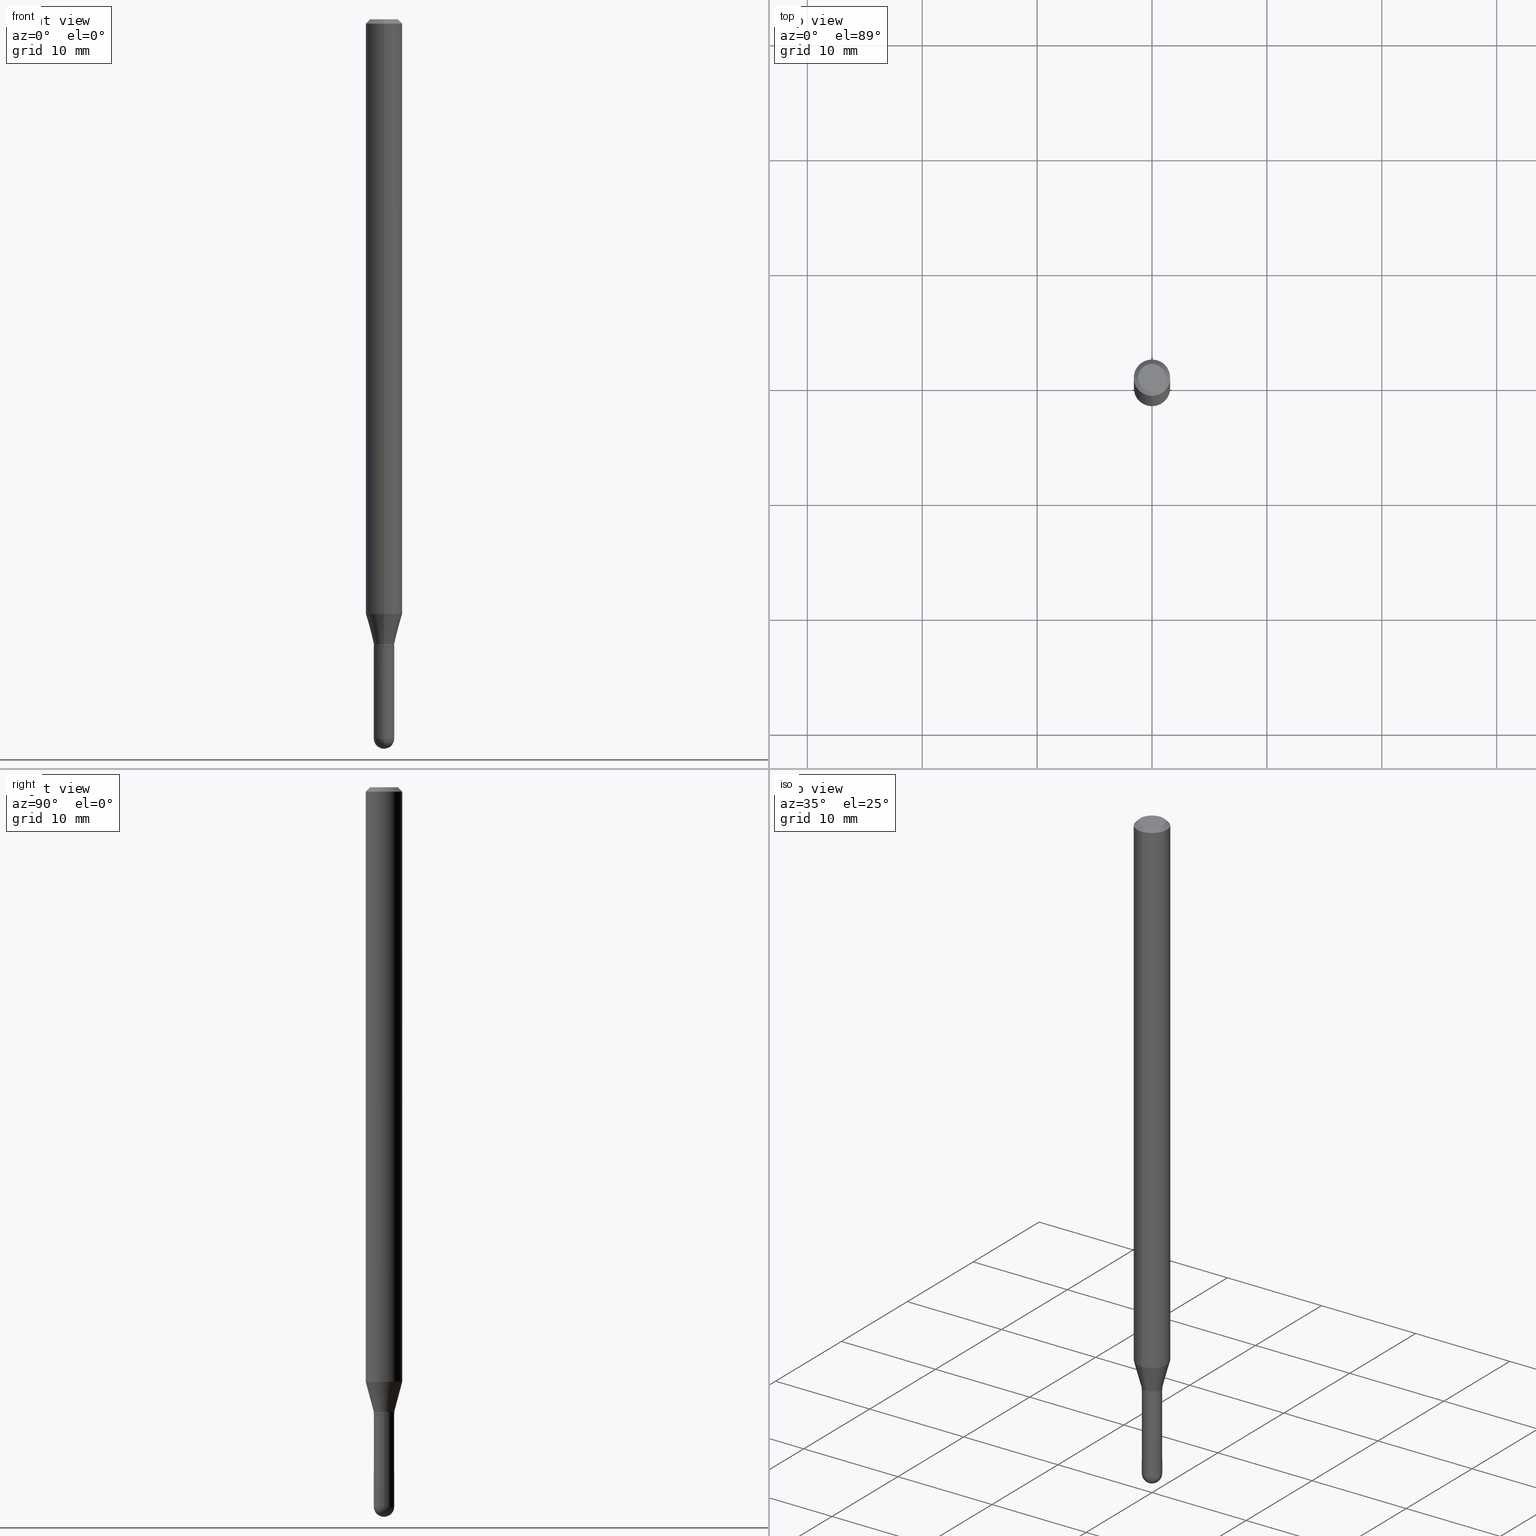
[diagram: canonical four-view strip — front | top / right | iso, engineering-drawing reading convention]
A machine part, canonical four-view strip (front | top / right | iso — engineering-drawing reading convention). The complete STEP part file that produces these views, byte-faithful:
ISO-10303-21;
HEADER;
FILE_DESCRIPTION (( 'STEP AP203' ),
    '1' );
FILE_NAME ('00967.STEP',
    '2024-03-07T19:18:32',
    ( '' ),
    ( '' ),
    'SwSTEP 2.0',
    'SolidWorks 2023',
    '' );
FILE_SCHEMA (( 'CONFIG_CONTROL_DESIGN' ));
ENDSEC;

DATA;
#1 = PERSON_AND_ORGANIZATION ( #127, #278 ) ;
#2 = CARTESIAN_POINT ( 'NONE',  ( 5.233462856667385232E-29, -7.471541492470345186E-15, -2.140000000000000124 ) ) ;
#3 = DIRECTION ( 'NONE',  ( -6.982962677686265922E-15, -1.000000000000000000, 3.483106191921935554E-15 ) ) ;
#4 = DATE_AND_TIME ( #236, #16 ) ;
#5 = CARTESIAN_POINT ( 'NONE',  ( 0.000000000000000000, 0.000000000000000000, 0.000000000000000000 ) ) ;
#6 = CIRCLE ( 'NONE', #483, 0.06250000000000000000 ) ;
#7 = CARTESIAN_POINT ( 'NONE',  ( -4.287811248607203282E-16, -0.06250000000000005551, -0.01499999999999979128 ) ) ;
#8 = FACE_OUTER_BOUND ( 'NONE', #20, .T. ) ;
#9 = CARTESIAN_POINT ( 'NONE',  ( 0.000000000000000000, 0.000000000000000000, 0.000000000000000000 ) ) ;
#10 = EDGE_CURVE ( 'NONE', #368, #273, #490, .T. ) ;
#11 = DIRECTION ( 'NONE',  ( 6.982962677686265922E-15, 1.000000000000000000, -3.491374529191749825E-15 ) ) ;
#12 = VERTEX_POINT ( 'NONE', #185 ) ;
#13 = CARTESIAN_POINT ( 'NONE',  ( 5.257918290577045984E-29, -7.506455237762263682E-15, -2.150000000000000355 ) ) ;
#14 = DIRECTION ( 'NONE',  ( -2.445468806185136597E-29, 3.491481338843145583E-15, 1.000000000000000000 ) ) ;
#15 = CONICAL_SURFACE ( 'NONE', #414, 0.03450000000000000289, 0.7853981633974739252 ) ;
#16 = LOCAL_TIME ( 14, 18, 32.00000000000000000, #86 ) ;
#17 = ADVANCED_FACE ( 'NONE', ( #455 ), #263, .F. ) ;
#18 = SPHERICAL_SURFACE ( 'NONE', #229, 0.03500000000000001721 ) ;
#19 = CARTESIAN_POINT ( 'NONE',  ( 2.469136006766870987E-16, 0.03449999999999249500, -2.150000000000000355 ) ) ;
#20 = EDGE_LOOP ( 'NONE', ( #197, #83, #415, #373 ) ) ;
#21 = ORIENTED_EDGE ( 'NONE', *, *, #167, .T. ) ;
#22 = PERSON_AND_ORGANIZATION ( #127, #278 ) ;
#23 = DIRECTION ( 'NONE',  ( -6.982962677686265133E-15, -1.000000000000000000, 0.000000000000000000 ) ) ;
#24 = CARTESIAN_POINT ( 'NONE',  ( 4.364351673553919652E-16, 0.06249999999999995143, -0.01500000000000022669 ) ) ;
#25 = ORIENTED_EDGE ( 'NONE', *, *, #386, .F. ) ;
#26 = ORIENTED_EDGE ( 'NONE', *, *, #32, .T. ) ;
#27 = APPROVAL_STATUS ( 'not_yet_approved' ) ;
#28 = APPROVAL ( #461, 'UNSPECIFIED' ) ;
#29 = CIRCLE ( 'NONE', #447, 0.03500000000000000333 ) ;
#30 = ORIENTED_EDGE ( 'NONE', *, *, #303, .T. ) ;
#31 = COORDINATED_UNIVERSAL_TIME_OFFSET ( 5, 0, .BEHIND. ) ;
#32 = EDGE_CURVE ( 'NONE', #336, #80, #205, .T. ) ;
#33 = ORIENTED_EDGE ( 'NONE', *, *, #10, .T. ) ;
#34 = ORIENTED_EDGE ( 'NONE', *, *, #357, .F. ) ;
#35 = DIRECTION ( 'NONE',  ( -2.445543390966067913E-29, 3.491374529191749825E-15, 1.000000000000000000 ) ) ;
#36 = ORIENTED_EDGE ( 'NONE', *, *, #101, .T. ) ;
#37 = AXIS2_PLACEMENT_3D ( 'NONE', #435, #314, #42 ) ;
#38 = LOCAL_TIME ( 14, 18, 32.00000000000000000, #394 ) ;
#39 = EDGE_CURVE ( 'NONE', #274, #145, #257, .T. ) ;
#40 = CARTESIAN_POINT ( 'NONE',  ( 5.256695518881564852E-29, -7.504709550497667599E-15, -2.149500000000000188 ) ) ;
#41 = LINE ( 'NONE', #233, #371 ) ;
#42 = DIRECTION ( 'NONE',  ( -6.982962677686265133E-15, -1.000000000000000000, 0.000000000000000000 ) ) ;
#43 = DIRECTION ( 'NONE',  ( -2.445543390966067913E-29, 3.491374529191749825E-15, 1.000000000000000000 ) ) ;
#44 = VECTOR ( 'NONE', #328, 39.37007874015748143 ) ;
#45 = CONICAL_SURFACE ( 'NONE', #220, 0.03450000000000000289, 0.7853981633974739252 ) ;
#46 = DIRECTION ( 'NONE',  ( -2.445543390966067632E-29, 3.491374529191749825E-15, 1.000000000000000000 ) ) ;
#47 = CARTESIAN_POINT ( 'NONE',  ( 3.668315086449104479E-31, -5.237061793787627745E-17, -0.01500000000000000812 ) ) ;
#48 = DIRECTION ( 'NONE',  ( -2.445468806185136597E-29, 3.491481338843145583E-15, 1.000000000000000000 ) ) ;
#49 = EDGE_LOOP ( 'NONE', ( #458, #498, #182, #462, #21 ) ) ;
#50 = CARTESIAN_POINT ( 'NONE',  ( 2.444036937190796236E-16, 0.03499999999999140604, -2.464999999999999858 ) ) ;
#51 = APPLICATION_CONTEXT ( 'configuration controlled 3d designs of mechanical parts and assemblies' ) ;
#52 = CIRCLE ( 'NONE', #337, 0.03500000000000000333 ) ;
#53 = ADVANCED_FACE ( 'NONE', ( #61 ), #118, .T. ) ;
#54 = AXIS2_PLACEMENT_3D ( 'NONE', #255, #409, #59 ) ;
#55 = DIRECTION ( 'NONE',  ( -4.851104656540964275E-15, -0.7071067811865500152, -0.7071067811865450192 ) ) ;
#56 = CC_DESIGN_APPROVAL ( #503, ( #494 ) ) ;
#57 = ORIENTED_EDGE ( 'NONE', *, *, #122, .F. ) ;
#58 = DIRECTION ( 'NONE',  ( 6.982962677686265922E-15, 1.000000000000000000, 0.000000000000000000 ) ) ;
#59 = DIRECTION ( 'NONE',  ( -6.982962677686265922E-15, -1.000000000000000000, 3.491374529191749825E-15 ) ) ;
#60 = DIRECTION ( 'NONE',  ( -2.445543390966067913E-29, 3.491374529191749825E-15, 1.000000000000000000 ) ) ;
#61 = FACE_OUTER_BOUND ( 'NONE', #77, .T. ) ;
#62 = ORIENTED_EDGE ( 'NONE', *, *, #308, .T. ) ;
#63 =( LENGTH_UNIT ( ) NAMED_UNIT ( * ) SI_UNIT ( $, .METRE. ) );
#64 = CARTESIAN_POINT ( 'NONE',  ( 2.486899575160862168E-16, 0.03499999999999229422, -2.149500000000000188 ) ) ;
#65 = AXIS2_PLACEMENT_3D ( 'NONE', #93, #88, #441 ) ;
#66 = VERTEX_POINT ( 'NONE', #143 ) ;
#67 = ORIENTED_EDGE ( 'NONE', *, *, #454, .T. ) ;
#68 = DIRECTION ( 'NONE',  ( 1.000000000000000000, 0.000000000000000000, 0.000000000000000000 ) ) ;
#69 = EDGE_LOOP ( 'NONE', ( #380, #67, #456, #496 ) ) ;
#70 = COORDINATED_UNIVERSAL_TIME_OFFSET ( 5, 0, .BEHIND. ) ;
#71 = CARTESIAN_POINT ( 'NONE',  ( 5.233462856667385232E-29, -7.471541492470345186E-15, -2.140000000000000124 ) ) ;
#72 = MECHANICAL_CONTEXT ( 'NONE', #352, 'mechanical' ) ;
#73 = EDGE_CURVE ( 'NONE', #504, #80, #389, .T. ) ;
#74 = CIRCLE ( 'NONE', #492, 0.03500000000000000333 ) ;
#75 = DIRECTION ( 'NONE',  ( -6.982962677686265133E-15, -1.000000000000000000, 0.000000000000000000 ) ) ;
#76 = ORIENTED_EDGE ( 'NONE', *, *, #308, .F. ) ;
#77 = EDGE_LOOP ( 'NONE', ( #34, #271, #225, #451 ) ) ;
#78 = CC_DESIGN_DATE_AND_TIME_ASSIGNMENT ( #226, #378, ( #180 ) ) ;
#79 = CARTESIAN_POINT ( 'NONE',  ( 4.440892098500625669E-16, 0.06250000000000000000, -2.182109080744843641E-16 ) ) ;
#80 = VERTEX_POINT ( 'NONE', #234 ) ;
#81 = SECURITY_CLASSIFICATION_LEVEL ( 'unclassified' ) ;
#82 = LINE ( 'NONE', #79, #97 ) ;
#83 = ORIENTED_EDGE ( 'NONE', *, *, #195, .T. ) ;
#84 = AXIS2_PLACEMENT_3D ( 'NONE', #262, #136, #217 ) ;
#85 = LOCAL_TIME ( 14, 18, 32.00000000000000000, #70 ) ;
#86 = COORDINATED_UNIVERSAL_TIME_OFFSET ( 5, 0, .BEHIND. ) ;
#87 = LINE ( 'NONE', #237, #429 ) ;
#88 = DIRECTION ( 'NONE',  ( -1.000000000000000000, 7.105427357601001070E-15, -4.926315508542082329E-29 ) ) ;
#89 = DIRECTION ( 'NONE',  ( -6.982962677686265922E-15, -1.000000000000000000, 4.370956789862821150E-15 ) ) ;
#90 = DIRECTION ( 'NONE',  ( -2.445543390966067913E-29, 3.491374529191749825E-15, 1.000000000000000000 ) ) ;
#91 = DIRECTION ( 'NONE',  ( -2.445543390966067913E-29, 3.491374529191749825E-15, 1.000000000000000000 ) ) ;
#92 = ADVANCED_FACE ( 'NONE', ( #387 ), #170, .T. ) ;
#93 = CARTESIAN_POINT ( 'NONE',  ( 6.025087525234234064E-29, -8.610787764045369491E-15, -2.464999999999999858 ) ) ;
#94 = ORIENTED_EDGE ( 'NONE', *, *, #184, .F. ) ;
#95 = CIRCLE ( 'NONE', #243, 0.04749999999999999362 ) ;
#96 = PERSON_AND_ORGANIZATION_ROLE ( 'classification_officer' ) ;
#97 = VECTOR ( 'NONE', #150, 39.37007874015748143 ) ;
#98 = CARTESIAN_POINT ( 'NONE',  ( 3.840629472727447874E-16, 0.04749999999999999362, -1.747056831868805383E-16 ) ) ;
#99 = CARTESIAN_POINT ( 'NONE',  ( -3.773273898774340269E-16, -0.04749999999999999362, 1.569748970863356842E-16 ) ) ;
#100 = DIRECTION ( 'NONE',  ( -6.982962677686265922E-15, -1.000000000000000000, 3.483106191921935554E-15 ) ) ;
#101 = EDGE_CURVE ( 'NONE', #264, #273, #82, .T. ) ;
#102 = CARTESIAN_POINT ( 'NONE',  ( 3.668315086449104479E-31, -5.237061793787627745E-17, -0.01500000000000000812 ) ) ;
#103 = DIRECTION ( 'NONE',  ( -2.445543390966067913E-29, 3.491374529191749825E-15, 1.000000000000000000 ) ) ;
#104 = CIRCLE ( 'NONE', #381, 0.06250000000000000000 ) ;
#105 = DIRECTION ( 'NONE',  ( -6.982962677686265133E-15, -1.000000000000000000, 3.491374529191749825E-15 ) ) ;
#106 = ORIENTED_EDGE ( 'NONE', *, *, #195, .F. ) ;
#107 = CARTESIAN_POINT ( 'NONE',  ( 6.025087525234234064E-29, -8.610787764045369491E-15, -2.464999999999999858 ) ) ;
#108 = CARTESIAN_POINT ( 'NONE',  ( 6.025087525234234064E-29, -8.610787764045369491E-15, -2.464999999999999858 ) ) ;
#109 = AXIS2_PLACEMENT_3D ( 'NONE', #141, #485, #295 ) ;
#110 = DIRECTION ( 'NONE',  ( 1.000000000000000000, -6.982962677686276966E-15, 0.000000000000000000 ) ) ;
#111 = FACE_OUTER_BOUND ( 'NONE', #258, .T. ) ;
#112 = CC_DESIGN_SECURITY_CLASSIFICATION ( #439, ( #494 ) ) ;
#113 = ORIENTED_EDGE ( 'NONE', *, *, #284, .T. ) ;
#114 = EDGE_CURVE ( 'NONE', #346, #493, #41, .T. ) ;
#115 = DIMENSIONAL_EXPONENTS ( 1.000000000000000000, 0.000000000000000000, 0.000000000000000000, 0.000000000000000000, 0.000000000000000000, 0.000000000000000000, 0.000000000000000000 ) ;
#116 = ORIENTED_EDGE ( 'NONE', *, *, #114, .F. ) ;
#117 = DATE_AND_TIME ( #152, #484 ) ;
#118 = CONICAL_SURFACE ( 'NONE', #109, 0.03499999999999992006, 0.2617993877991506846 ) ;
#119 = AXIS2_PLACEMENT_3D ( 'NONE', #203, #285, #238 ) ;
#120 = VERTEX_POINT ( 'NONE', #227 ) ;
#121 = APPROVAL_DATE_TIME ( #117, #503 ) ;
#122 = EDGE_CURVE ( 'NONE', #384, #274, #222, .T. ) ;
#123 = ORIENTED_EDGE ( 'NONE', *, *, #39, .T. ) ;
#124 = DIRECTION ( 'NONE',  ( 2.438088387897960049E-29, -3.491481338843145188E-15, -1.000000000000000000 ) ) ;
#125 = APPROVAL_PERSON_ORGANIZATION ( #22, #28, #183 ) ;
#126 = DIRECTION ( 'NONE',  ( -6.982962677686265133E-15, -1.000000000000000000, 0.000000000000000000 ) ) ;
#127 = PERSON ( 'UNSPECIFIED', 'UNSPECIFIED', 'UNSPECIFIED', ('UNSPECIFIED'), ('UNSPECIFIED'), ('UNSPECIFIED') ) ;
#128 = EDGE_CURVE ( 'NONE', #252, #66, #397, .T. ) ;
#129 = ORIENTED_EDGE ( 'NONE', *, *, #202, .T. ) ;
#130 = CARTESIAN_POINT ( 'NONE',  ( -2.409122123801235628E-16, -0.03450000000000751077, -2.150000000000000355 ) ) ;
#131 = FACE_OUTER_BOUND ( 'NONE', #69, .T. ) ;
#132 = CONICAL_SURFACE ( 'NONE', #437, 0.06250000000000000000, 0.7853981633974483900 ) ;
#133 = EDGE_CURVE ( 'NONE', #252, #218, #349, .T. ) ;
#134 = CARTESIAN_POINT ( 'NONE',  ( 0.000000000000000000, 0.000000000000000000, 0.000000000000000000 ) ) ;
#135 = DIRECTION ( 'NONE',  ( -1.000000000000000000, 6.982962677686265922E-15, -4.883557194083112340E-29 ) ) ;
#136 = DIRECTION ( 'NONE',  ( -2.445468806185136597E-29, 3.491481338843145583E-15, 1.000000000000000000 ) ) ;
#137 = FACE_OUTER_BOUND ( 'NONE', #422, .T. ) ;
#138 = DIRECTION ( 'NONE',  ( 2.445543390966067632E-29, -3.491374529191749825E-15, -1.000000000000000000 ) ) ;
#139 = CC_DESIGN_PERSON_AND_ORGANIZATION_ASSIGNMENT ( #163, #96, ( #439 ) ) ;
#140 = CARTESIAN_POINT ( 'NONE',  ( -0.03500000000000000333, 2.486899575160350887E-16, -1.721627281589217108E-30 ) ) ;
#141 = CARTESIAN_POINT ( 'NONE',  ( 5.233462856667385232E-29, -7.471541492470345186E-15, -2.140000000000000124 ) ) ;
#142 = ADVANCED_FACE ( 'NONE', ( #131 ), #132, .T. ) ;
#143 = CARTESIAN_POINT ( 'NONE',  ( -2.486899575159748395E-16, -0.03500000000000861450, -2.464999999999999858 ) ) ;
#144 = DIRECTION ( 'NONE',  ( 6.982962677686265922E-15, 1.000000000000000000, 0.000000000000000000 ) ) ;
#145 = VERTEX_POINT ( 'NONE', #404 ) ;
#146 = CALENDAR_DATE ( 2024, 7, 3 ) ;
#147 = CIRCLE ( 'NONE', #212, 0.03499999999999992006 ) ;
#148 = CONICAL_SURFACE ( 'NONE', #382, 0.06250000000000000000, 0.7853981633974483900 ) ;
#149 = ADVANCED_FACE ( 'NONE', ( #348 ), #356, .T. ) ;
#150 = DIRECTION ( 'NONE',  ( -2.445543390966067632E-29, 3.491374529191749825E-15, 1.000000000000000000 ) ) ;
#151 = ORIENTED_EDGE ( 'NONE', *, *, #114, .T. ) ;
#152 = CALENDAR_DATE ( 2024, 7, 3 ) ;
#153 = ORIENTED_EDGE ( 'NONE', *, *, #370, .T. ) ;
#154 = VERTEX_POINT ( 'NONE', #166 ) ;
#155 = DIRECTION ( 'NONE',  ( 0.000000000000000000, 0.000000000000000000, 1.000000000000000000 ) ) ;
#156 = ORIENTED_EDGE ( 'NONE', *, *, #340, .F. ) ;
#157 = ORIENTED_EDGE ( 'NONE', *, *, #440, .F. ) ;
#158 = APPROVAL_STATUS ( 'not_yet_approved' ) ;
#159 = CARTESIAN_POINT ( 'NONE',  ( 3.668315086449104479E-31, -5.237061793787627745E-17, -0.01500000000000000812 ) ) ;
#160 = ORIENTED_EDGE ( 'NONE', *, *, #395, .T. ) ;
#161 = AXIS2_PLACEMENT_3D ( 'NONE', #294, #60, #181 ) ;
#162 = EDGE_CURVE ( 'NONE', #346, #264, #398, .T. ) ;
#163 = PERSON_AND_ORGANIZATION ( #127, #278 ) ;
#164 = DIRECTION ( 'NONE',  ( 1.000000000000000000, -6.982962677686248567E-15, 0.000000000000000000 ) ) ;
#165 = CARTESIAN_POINT ( 'NONE',  ( 5.257918290577045984E-29, -7.506455237762263682E-15, -2.150000000000000355 ) ) ;
#166 = CARTESIAN_POINT ( 'NONE',  ( -2.444036937189664220E-16, -0.03500000000000739325, -2.140000000000000124 ) ) ;
#167 = EDGE_CURVE ( 'NONE', #504, #218, #74, .T. ) ;
#168 = FACE_OUTER_BOUND ( 'NONE', #299, .T. ) ;
#169 = CARTESIAN_POINT ( 'NONE',  ( 4.982473321519396177E-29, -7.113216846362469892E-15, -2.037368602791856276 ) ) ;
#170 = CONICAL_SURFACE ( 'NONE', #453, 0.03499999999999992006, 0.2617993877991506846 ) ;
#171 = AXIS2_PLACEMENT_3D ( 'NONE', #159, #43, #3 ) ;
#172 = AXIS2_PLACEMENT_3D ( 'NONE', #249, #481, #450 ) ;
#173 = DIRECTION ( 'NONE',  ( -1.000000000000000000, 6.982962677686265922E-15, -4.883557194083112340E-29 ) ) ;
#174 = DIRECTION ( 'NONE',  ( 5.024295867788190974E-15, 0.7071067811865681119, 0.7071067811865270336 ) ) ;
#175 = CYLINDRICAL_SURFACE ( 'NONE', #430, 0.06250000000000000000 ) ;
#176 = CARTESIAN_POINT ( 'NONE',  ( 2.486899575160344971E-16, 0.03499999999999992700, -1.221981085217109895E-16 ) ) ;
#177 = EDGE_CURVE ( 'NONE', #493, #273, #187, .T. ) ;
#178 = AXIS2_PLACEMENT_3D ( 'NONE', #310, #354, #392 ) ;
#179 = VECTOR ( 'NONE', #55, 39.37007874015748143 ) ;
#180 = PRODUCT_DEFINITION ( 'UNKNOWN', '', #494, #399 ) ;
#181 = DIRECTION ( 'NONE',  ( -6.982962677686266711E-15, -1.000000000000000000, 3.491374529191750614E-15 ) ) ;
#182 = ORIENTED_EDGE ( 'NONE', *, *, #405, .F. ) ;
#183 = APPROVAL_ROLE ( '' ) ;
#184 = EDGE_CURVE ( 'NONE', #273, #493, #6, .T. ) ;
#185 = CARTESIAN_POINT ( 'NONE',  ( -2.409122123801235628E-16, -0.03450000000000751077, -2.150000000000000355 ) ) ;
#186 = ORIENTED_EDGE ( 'NONE', *, *, #133, .T. ) ;
#187 = CIRCLE ( 'NONE', #171, 0.06250000000000000000 ) ;
#188 = APPROVAL_ROLE ( '' ) ;
#189 = VECTOR ( 'NONE', #412, 39.37007874015748143 ) ;
#190 = EDGE_LOOP ( 'NONE', ( #509, #36, #377, #116 ) ) ;
#191 = DATE_AND_TIME ( #421, #244 ) ;
#192 = ORIENTED_EDGE ( 'NONE', *, *, #395, .F. ) ;
#193 = ORIENTED_EDGE ( 'NONE', *, *, #454, .F. ) ;
#194 = EDGE_LOOP ( 'NONE', ( #193, #192, #33, #208 ) ) ;
#195 = EDGE_CURVE ( 'NONE', #275, #12, #261, .T. ) ;
#196 = VECTOR ( 'NONE', #335, 39.37007874015748143 ) ;
#197 = ORIENTED_EDGE ( 'NONE', *, *, #216, .F. ) ;
#198 = CYLINDRICAL_SURFACE ( 'NONE', #178, 0.03500000000000000333 ) ;
#199 = CARTESIAN_POINT ( 'NONE',  ( 0.03500000000000000333, -2.444036937190193250E-16, 1.706661871528577808E-30 ) ) ;
#200 = ORIENTED_EDGE ( 'NONE', *, *, #167, .F. ) ;
#201 = CARTESIAN_POINT ( 'NONE',  ( -0.03500000000000000333, -7.807903231864523961E-15, -2.150000000000000355 ) ) ;
#202 = EDGE_CURVE ( 'NONE', #228, #368, #95, .T. ) ;
#203 = CARTESIAN_POINT ( 'NONE',  ( 6.025087525234234064E-29, -8.610787764045369491E-15, -2.464999999999999858 ) ) ;
#204 = LINE ( 'NONE', #511, #312 ) ;
#205 = CIRCLE ( 'NONE', #260, 0.03500000000000000333 ) ;
#206 = APPROVAL_ROLE ( '' ) ;
#207 = DIRECTION ( 'NONE',  ( -2.445468806185136597E-29, 3.491481338843145583E-15, 1.000000000000000000 ) ) ;
#208 = ORIENTED_EDGE ( 'NONE', *, *, #184, .T. ) ;
#209 = ADVANCED_FACE ( 'NONE', ( #8 ), #45, .T. ) ;
#210 = DIRECTION ( 'NONE',  ( 1.000000000000000000, -6.982962677686248567E-15, 0.000000000000000000 ) ) ;
#211 = CARTESIAN_POINT ( 'NONE',  ( 6.028080607246362204E-29, -8.606501500248354960E-15, -2.464999999999999858 ) ) ;
#212 = AXIS2_PLACEMENT_3D ( 'NONE', #2, #91, #315 ) ;
#213 = AXIS2_PLACEMENT_3D ( 'NONE', #502, #155, #68 ) ;
#214 = FACE_OUTER_BOUND ( 'NONE', #467, .T. ) ;
#215 = CARTESIAN_POINT ( 'NONE',  ( 3.316907271900976096E-16, 0.04749999999999999362, -1.702729866617443063E-16 ) ) ;
#216 = EDGE_CURVE ( 'NONE', #275, #274, #204, .T. ) ;
#217 = DIRECTION ( 'NONE',  ( 1.000000000000000000, -6.982962677686248567E-15, 0.000000000000000000 ) ) ;
#218 = VERTEX_POINT ( 'NONE', #50 ) ;
#219 = ORIENTED_EDGE ( 'NONE', *, *, #505, .F. ) ;
#220 = AXIS2_PLACEMENT_3D ( 'NONE', #165, #320, #126 ) ;
#221 = CYLINDRICAL_SURFACE ( 'NONE', #270, 0.03500000000000000333 ) ;
#222 = CIRCLE ( 'NONE', #288, 0.03499999999999992700 ) ;
#223 = ORIENTED_EDGE ( 'NONE', *, *, #128, .T. ) ;
#224 = ADVANCED_FACE ( 'NONE', ( #468 ), #396, .F. ) ;
#225 = ORIENTED_EDGE ( 'NONE', *, *, #232, .T. ) ;
#226 = DATE_AND_TIME ( #146, #85 ) ;
#227 = CARTESIAN_POINT ( 'NONE',  ( -0.03500000000000000333, -7.807903231864523961E-15, -2.464999999999999858 ) ) ;
#228 = VERTEX_POINT ( 'NONE', #99 ) ;
#229 = AXIS2_PLACEMENT_3D ( 'NONE', #108, #135, #144 ) ;
#230 = CC_DESIGN_PERSON_AND_ORGANIZATION_ASSIGNMENT ( #497, #491, ( #180 ) ) ;
#231 = ORIENTED_EDGE ( 'NONE', *, *, #216, .T. ) ;
#232 = EDGE_CURVE ( 'NONE', #154, #346, #318, .T. ) ;
#233 = CARTESIAN_POINT ( 'NONE',  ( -4.364351673553916201E-16, -0.06250000000000000000, 2.182109080744843641E-16 ) ) ;
#234 = CARTESIAN_POINT ( 'NONE',  ( 0.03500000000000000333, -7.751088572231783501E-15, -2.150000000000000355 ) ) ;
#235 = CIRCLE ( 'NONE', #360, 0.03499999999999992700 ) ;
#236 = CALENDAR_DATE ( 2024, 7, 3 ) ;
#237 = CARTESIAN_POINT ( 'NONE',  ( -2.444036937190187827E-16, -0.03499999999999992700, 1.221981085217109895E-16 ) ) ;
#238 = DIRECTION ( 'NONE',  ( 6.982962677686265922E-15, 1.000000000000000000, 0.000000000000000000 ) ) ;
#239 = DATE_TIME_ROLE ( 'classification_date' ) ;
#240 = DIRECTION ( 'NONE',  ( -6.982962677686265133E-15, -1.000000000000000000, 3.491374529191749825E-15 ) ) ;
#241 = DIRECTION ( 'NONE',  ( -2.445543390966067913E-29, 3.491374529191749825E-15, 1.000000000000000000 ) ) ;
#242 = DIRECTION ( 'NONE',  ( 2.445543390966067913E-29, -3.491374529191749825E-15, -1.000000000000000000 ) ) ;
#243 = AXIS2_PLACEMENT_3D ( 'NONE', #407, #471, #279 ) ;
#244 = LOCAL_TIME ( 14, 18, 32.00000000000000000, #31 ) ;
#245 = DIRECTION ( 'NONE',  ( -2.445543390966067913E-29, 3.491374529191749825E-15, 1.000000000000000000 ) ) ;
#246 = ADVANCED_FACE ( 'NONE', ( #434 ), #478, .T. ) ;
#247 = DIRECTION ( 'NONE',  ( 1.000000000000000000, -6.982962677686248567E-15, 0.000000000000000000 ) ) ;
#248 = ORIENTED_EDGE ( 'NONE', *, *, #162, .F. ) ;
#249 = CARTESIAN_POINT ( 'NONE',  ( 5.233462856667385232E-29, -7.471541492470345186E-15, -2.140000000000000124 ) ) ;
#250 = PLANE ( 'NONE',  #54 ) ;
#251 = CIRCLE ( 'NONE', #161, 0.04749999999999999362 ) ;
#252 = VERTEX_POINT ( 'NONE', #473 ) ;
#253 = ORIENTED_EDGE ( 'NONE', *, *, #440, .T. ) ;
#254 = SPHERICAL_SURFACE ( 'NONE', #463, 0.03500000000000001721 ) ;
#255 = CARTESIAN_POINT ( 'NONE',  ( 5.257918290577045984E-29, -7.506455237762263682E-15, -2.150000000000000355 ) ) ;
#256 = DIRECTION ( 'NONE',  ( -6.982962677686265922E-15, -1.000000000000000000, 3.491374529191749825E-15 ) ) ;
#257 = LINE ( 'NONE', #176, #44 ) ;
#258 = EDGE_LOOP ( 'NONE', ( #459, #123, #157, #76 ) ) ;
#259 = DIRECTION ( 'NONE',  ( -2.445543390966067913E-29, 3.491374529191749825E-15, 1.000000000000000000 ) ) ;
#260 = AXIS2_PLACEMENT_3D ( 'NONE', #448, #410, #365 ) ;
#261 = CIRCLE ( 'NONE', #37, 0.03450000000000000289 ) ;
#262 = CARTESIAN_POINT ( 'NONE',  ( 6.028080607246362204E-29, -8.606501500248354960E-15, -2.464999999999999858 ) ) ;
#263 = PLANE ( 'NONE',  #475 ) ;
#264 = VERTEX_POINT ( 'NONE', #401 ) ;
#265 = ADVANCED_BREP_SHAPE_REPRESENTATION ( '00967', ( #329, #506, #213 ), #477 ) ;
#266 = CARTESIAN_POINT ( 'NONE',  ( 5.256695518881564852E-29, -7.504709550497667599E-15, -2.149500000000000188 ) ) ;
#267 = CIRCLE ( 'NONE', #327, 0.03500000000000000333 ) ;
#268 = PERSON_AND_ORGANIZATION ( #127, #278 ) ;
#269 = ADVANCED_FACE ( 'NONE', ( #445 ), #15, .T. ) ;
#270 = AXIS2_PLACEMENT_3D ( 'NONE', #297, #372, #406 ) ;
#271 = ORIENTED_EDGE ( 'NONE', *, *, #323, .T. ) ;
#272 = PERSON_AND_ORGANIZATION ( #127, #278 ) ;
#273 = VERTEX_POINT ( 'NONE', #413 ) ;
#274 = VERTEX_POINT ( 'NONE', #64 ) ;
#275 = VERTEX_POINT ( 'NONE', #19 ) ;
#276 = ADVANCED_FACE ( 'NONE', ( #111 ), #298, .T. ) ;
#277 = VECTOR ( 'NONE', #280, 39.37007874015748143 ) ;
#278 = ORGANIZATION ( 'UNSPECIFIED', 'UNSPECIFIED', '' ) ;
#279 = DIRECTION ( 'NONE',  ( -6.982962677686266711E-15, -1.000000000000000000, 3.491374529191750614E-15 ) ) ;
#280 = DIRECTION ( 'NONE',  ( 1.839019923739603076E-15, 0.2588190451025253469, 0.9659258262890670910 ) ) ;
#281 = CARTESIAN_POINT ( 'NONE',  ( 2.444036937190718829E-16, 0.03499999999999249545, -2.150000000000000355 ) ) ;
#282 = DIRECTION ( 'NONE',  ( -2.445543390966067913E-29, 3.491374529191749825E-15, 1.000000000000000000 ) ) ;
#283 = LINE ( 'NONE', #438, #277 ) ;
#284 = EDGE_CURVE ( 'NONE', #120, #66, #305, .T. ) ;
#285 = DIRECTION ( 'NONE',  ( 1.000000000000000000, -6.982962677686265922E-15, 4.883557194083112340E-29 ) ) ;
#286 = AXIS2_PLACEMENT_3D ( 'NONE', #281, #124, #316 ) ;
#287 = CC_DESIGN_APPROVAL ( #28, ( #180 ) ) ;
#288 = AXIS2_PLACEMENT_3D ( 'NONE', #266, #419, #75 ) ;
#289 = DIRECTION ( 'NONE',  ( -6.982962677686265922E-15, -1.000000000000000000, 3.491374529191749825E-15 ) ) ;
#290 = CARTESIAN_POINT ( 'NONE',  ( 5.257757933298044131E-29, -7.506684878512763535E-15, -2.150000000000000355 ) ) ;
#291 = ADVANCED_FACE ( 'NONE', ( #137 ), #250, .F. ) ;
#292 = LENGTH_MEASURE_WITH_UNIT ( LENGTH_MEASURE( 0.02539999999999999897 ), #63 );
#293 = AXIS2_PLACEMENT_3D ( 'NONE', #13, #331, #333 ) ;
#294 = CARTESIAN_POINT ( 'NONE',  ( 2.168070338241019789E-46, -3.095240748699463690E-32, -8.865393050272408531E-18 ) ) ;
#295 = DIRECTION ( 'NONE',  ( -6.982962677686266711E-15, -1.000000000000000000, 0.000000000000000000 ) ) ;
#296 = FACE_OUTER_BOUND ( 'NONE', #194, .T. ) ;
#297 = CARTESIAN_POINT ( 'NONE',  ( 0.000000000000000000, 0.000000000000000000, 0.000000000000000000 ) ) ;
#298 = CYLINDRICAL_SURFACE ( 'NONE', #300, 0.03499999999999992700 ) ;
#299 = EDGE_LOOP ( 'NONE', ( #219, #113, #443, #469, #334 ) ) ;
#300 = AXIS2_PLACEMENT_3D ( 'NONE', #363, #103, #105 ) ;
#301 = EDGE_LOOP ( 'NONE', ( #324, #30, #62, #385 ) ) ;
#302 = APPROVAL ( #158, 'UNSPECIFIED' ) ;
#303 = EDGE_CURVE ( 'NONE', #274, #384, #235, .T. ) ;
#304 = ORIENTED_EDGE ( 'NONE', *, *, #424, .T. ) ;
#305 = CIRCLE ( 'NONE', #84, 0.03500000000000000333 ) ;
#306 = PERSON_AND_ORGANIZATION ( #127, #278 ) ;
#307 = EDGE_LOOP ( 'NONE', ( #388, #186, #200, #25 ) ) ;
#308 = EDGE_CURVE ( 'NONE', #384, #154, #87, .T. ) ;
#309 = ORIENTED_EDGE ( 'NONE', *, *, #357, .T. ) ;
#310 = CARTESIAN_POINT ( 'NONE',  ( 0.000000000000000000, 0.000000000000000000, 0.000000000000000000 ) ) ;
#311 = DIRECTION ( 'NONE',  ( -2.445543390966067632E-29, 3.491374529191749825E-15, 1.000000000000000000 ) ) ;
#312 = VECTOR ( 'NONE', #174, 39.37007874015748143 ) ;
#313 = CARTESIAN_POINT ( 'NONE',  ( -4.364351673553420205E-16, -0.06250000000000714706, -2.037368602791855832 ) ) ;
#314 = DIRECTION ( 'NONE',  ( -2.445543390966067913E-29, 3.491374529191749825E-15, 1.000000000000000000 ) ) ;
#315 = DIRECTION ( 'NONE',  ( -6.982962677686266711E-15, -1.000000000000000000, 0.000000000000000000 ) ) ;
#316 = DIRECTION ( 'NONE',  ( -1.000000000000000000, 6.982962677686265922E-15, -4.876176775795935793E-29 ) ) ;
#317 = LINE ( 'NONE', #130, #350 ) ;
#318 = LINE ( 'NONE', #432, #343 ) ;
#319 = VECTOR ( 'NONE', #460, 39.37007874015748143 ) ;
#320 = DIRECTION ( 'NONE',  ( -2.445543390966067913E-29, 3.491374529191749825E-15, 1.000000000000000000 ) ) ;
#321 = APPROVAL_PERSON_ORGANIZATION ( #1, #302, #206 ) ;
#322 = FACE_OUTER_BOUND ( 'NONE', #376, .T. ) ;
#323 = EDGE_CURVE ( 'NONE', #145, #154, #147, .T. ) ;
#324 = ORIENTED_EDGE ( 'NONE', *, *, #39, .F. ) ;
#325 = CARTESIAN_POINT ( 'NONE',  ( 0.03500000000000000333, -8.300996883099578424E-15, -2.464999999999999858 ) ) ;
#326 = CARTESIAN_POINT ( 'NONE',  ( 5.257918290577045984E-29, -7.506455237762263682E-15, -2.150000000000000355 ) ) ;
#327 = AXIS2_PLACEMENT_3D ( 'NONE', #364, #367, #210 ) ;
#328 = DIRECTION ( 'NONE',  ( -2.445543390966067632E-29, 3.491374529191749825E-15, 1.000000000000000000 ) ) ;
#329 = MANIFOLD_SOLID_BREP ( 'Body-Move/Copy2[1]', #428 ) ;
#330 = CC_DESIGN_DATE_AND_TIME_ASSIGNMENT ( #426, #239, ( #439 ) ) ;
#331 = DIRECTION ( 'NONE',  ( -2.445543390966067913E-29, 3.491374529191749825E-15, 1.000000000000000000 ) ) ;
#332 = ADVANCED_FACE ( 'NONE', ( #168 ), #198, .T. ) ;
#333 = DIRECTION ( 'NONE',  ( -6.982962677686265133E-15, -1.000000000000000000, 0.000000000000000000 ) ) ;
#334 = ORIENTED_EDGE ( 'NONE', *, *, #32, .F. ) ;
#335 = DIRECTION ( 'NONE',  ( 4.937700262164548042E-15, 0.7071067811865451302, -0.7071067811865499042 ) ) ;
#336 = VERTEX_POINT ( 'NONE', #201 ) ;
#337 = AXIS2_PLACEMENT_3D ( 'NONE', #351, #48, #164 ) ;
#338 = COORDINATED_UNIVERSAL_TIME_OFFSET ( 5, 0, .BEHIND. ) ;
#339 = UNCERTAINTY_MEASURE_WITH_UNIT (LENGTH_MEASURE( 1.000000000000000082E-05 ), #446, 'distance_accuracy_value', 'NONE');
#340 = EDGE_CURVE ( 'NONE', #12, #384, #317, .T. ) ;
#341 = EDGE_LOOP ( 'NONE', ( #304, #231, #57, #156 ) ) ;
#342 = APPROVAL_DATE_TIME ( #191, #28 ) ;
#343 = VECTOR ( 'NONE', #474, 39.37007874015748143 ) ;
#344 = PERSON_AND_ORGANIZATION ( #127, #278 ) ;
#345 = EDGE_LOOP ( 'NONE', ( #160, #129 ) ) ;
#346 = VERTEX_POINT ( 'NONE', #313 ) ;
#347 = DIRECTION ( 'NONE',  ( -4.937700262164674260E-15, -0.7071067811865632269, 0.7071067811865319186 ) ) ;
#348 = FACE_OUTER_BOUND ( 'NONE', #190, .T. ) ;
#349 = CIRCLE ( 'NONE', #119, 0.03500000000000001721 ) ;
#350 = VECTOR ( 'NONE', #347, 39.37007874015748143 ) ;
#351 = CARTESIAN_POINT ( 'NONE',  ( 6.028080607246362204E-29, -8.606501500248354960E-15, -2.464999999999999858 ) ) ;
#352 = APPLICATION_CONTEXT ( 'configuration controlled 3d designs of mechanical parts and assemblies' ) ;
#353 = DIRECTION ( 'NONE',  ( 6.982962677686265922E-15, 1.000000000000000000, -3.483106191921935554E-15 ) ) ;
#354 = DIRECTION ( 'NONE',  ( -2.445468806185136597E-29, 3.491481338843145583E-15, 1.000000000000000000 ) ) ;
#355 = APPROVAL_DATE_TIME ( #4, #302 ) ;
#356 = CYLINDRICAL_SURFACE ( 'NONE', #476, 0.06250000000000000000 ) ;
#357 = EDGE_CURVE ( 'NONE', #145, #264, #283, .T. ) ;
#358 = DIRECTION ( 'NONE',  ( 2.445543390966067913E-29, -3.491374529191749825E-15, -1.000000000000000000 ) ) ;
#359 = CARTESIAN_POINT ( 'NONE',  ( 3.668315086449104479E-31, -5.237061793787627745E-17, -0.01500000000000000812 ) ) ;
#360 = AXIS2_PLACEMENT_3D ( 'NONE', #40, #241, #431 ) ;
#361 = APPROVAL_PERSON_ORGANIZATION ( #344, #503, #188 ) ;
#362 = CARTESIAN_POINT ( 'NONE',  ( -4.364351673553912750E-16, -0.06250000000000005551, -0.01499999999999979128 ) ) ;
#363 = CARTESIAN_POINT ( 'NONE',  ( 0.000000000000000000, 0.000000000000000000, 0.000000000000000000 ) ) ;
#364 = CARTESIAN_POINT ( 'NONE',  ( 6.028080607246362204E-29, -8.606501500248354960E-15, -2.464999999999999858 ) ) ;
#365 = DIRECTION ( 'NONE',  ( 1.000000000000000000, -6.982962677686276966E-15, 0.000000000000000000 ) ) ;
#366 = ORIENTED_EDGE ( 'NONE', *, *, #232, .F. ) ;
#367 = DIRECTION ( 'NONE',  ( -2.445468806185136597E-29, 3.491481338843145583E-15, 1.000000000000000000 ) ) ;
#368 = VERTEX_POINT ( 'NONE', #98 ) ;
#369 = ORIENTED_EDGE ( 'NONE', *, *, #133, .F. ) ;
#370 = EDGE_CURVE ( 'NONE', #264, #346, #104, .T. ) ;
#371 = VECTOR ( 'NONE', #311, 39.37007874015748143 ) ;
#372 = DIRECTION ( 'NONE',  ( -2.445468806185136597E-29, 3.491481338843145583E-15, 1.000000000000000000 ) ) ;
#373 = ORIENTED_EDGE ( 'NONE', *, *, #303, .F. ) ;
#374 = ORIENTED_EDGE ( 'NONE', *, *, #284, .F. ) ;
#375 = PERSON_AND_ORGANIZATION_ROLE ( 'design_owner' ) ;
#376 = EDGE_LOOP ( 'NONE', ( #427, #153, #151, #94 ) ) ;
#377 = ORIENTED_EDGE ( 'NONE', *, *, #177, .F. ) ;
#378 = DATE_TIME_ROLE ( 'creation_date' ) ;
#379 = EDGE_CURVE ( 'NONE', #218, #120, #52, .T. ) ;
#380 = ORIENTED_EDGE ( 'NONE', *, *, #202, .F. ) ;
#381 = AXIS2_PLACEMENT_3D ( 'NONE', #403, #245, #89 ) ;
#382 = AXIS2_PLACEMENT_3D ( 'NONE', #102, #358, #487 ) ;
#383 = APPLICATION_PROTOCOL_DEFINITION ( 'international standard', 'config_control_design', 1994, #51 ) ;
#384 = VERTEX_POINT ( 'NONE', #472 ) ;
#385 = ORIENTED_EDGE ( 'NONE', *, *, #323, .F. ) ;
#386 = EDGE_CURVE ( 'NONE', #66, #504, #267, .T. ) ;
#387 = FACE_OUTER_BOUND ( 'NONE', #436, .T. ) ;
#388 = ORIENTED_EDGE ( 'NONE', *, *, #128, .F. ) ;
#389 = LINE ( 'NONE', #199, #319 ) ;
#390 = SHAPE_DEFINITION_REPRESENTATION ( #416, #265 ) ;
#391 = CC_DESIGN_PERSON_AND_ORGANIZATION_ASSIGNMENT ( #272, #423, ( #494 ) ) ;
#392 = DIRECTION ( 'NONE',  ( 1.000000000000000000, -6.982962677686265922E-15, 4.876176775795936353E-29 ) ) ;
#393 = DIRECTION ( 'NONE',  ( -2.445543390966067913E-29, 3.491374529191749825E-15, 1.000000000000000000 ) ) ;
#394 = COORDINATED_UNIVERSAL_TIME_OFFSET ( 5, 0, .BEHIND. ) ;
#395 = EDGE_CURVE ( 'NONE', #368, #228, #251, .T. ) ;
#396 = PLANE ( 'NONE',  #286 ) ;
#397 = CIRCLE ( 'NONE', #65, 0.03500000000000001721 ) ;
#398 = CIRCLE ( 'NONE', #408, 0.06250000000000000000 ) ;
#399 = DESIGN_CONTEXT ( 'detailed design', #51, 'design' ) ;
#400 = CC_DESIGN_APPROVAL ( #302, ( #439 ) ) ;
#401 = CARTESIAN_POINT ( 'NONE',  ( 4.440892098501121172E-16, 0.06249999999999285294, -2.037368602791856276 ) ) ;
#402 = EDGE_LOOP ( 'NONE', ( #512, #26 ) ) ;
#403 = CARTESIAN_POINT ( 'NONE',  ( 4.982473321519396177E-29, -7.113216846362469892E-15, -2.037368602791856276 ) ) ;
#404 = CARTESIAN_POINT ( 'NONE',  ( 3.463895836830996847E-16, 0.03499999999999245381, -2.140000000000000124 ) ) ;
#405 = EDGE_CURVE ( 'NONE', #80, #336, #29, .T. ) ;
#406 = DIRECTION ( 'NONE',  ( 1.000000000000000000, -6.982962677686265922E-15, 4.876176775795936353E-29 ) ) ;
#407 = CARTESIAN_POINT ( 'NONE',  ( 2.168070338241019789E-46, -3.095240748699463690E-32, -8.865393050272408531E-18 ) ) ;
#408 = AXIS2_PLACEMENT_3D ( 'NONE', #169, #282, #508 ) ;
#409 = DIRECTION ( 'NONE',  ( -2.445543390966067632E-29, 3.491374529191749825E-15, 1.000000000000000000 ) ) ;
#410 = DIRECTION ( 'NONE',  ( -2.445468806185136597E-29, 3.491481338843145583E-15, 1.000000000000000000 ) ) ;
#411 = ADVANCED_FACE ( 'NONE', ( #444 ), #18, .T. ) ;
#412 = DIRECTION ( 'NONE',  ( -2.445468806185136877E-29, 3.491481338843145188E-15, 1.000000000000000000 ) ) ;
#413 = CARTESIAN_POINT ( 'NONE',  ( 4.440892098501128074E-16, 0.06249999999999995837, -0.01500000000000022669 ) ) ;
#414 = AXIS2_PLACEMENT_3D ( 'NONE', #326, #488, #23 ) ;
#415 = ORIENTED_EDGE ( 'NONE', *, *, #340, .T. ) ;
#416 = PRODUCT_DEFINITION_SHAPE ( 'NONE', 'NONE',  #180 ) ;
#417 = ORIENTED_EDGE ( 'NONE', *, *, #424, .F. ) ;
#418 =( NAMED_UNIT ( * ) PLANE_ANGLE_UNIT ( ) SI_UNIT ( $, .RADIAN. ) );
#419 = DIRECTION ( 'NONE',  ( -2.445543390966067913E-29, 3.491374529191749825E-15, 1.000000000000000000 ) ) ;
#420 = CIRCLE ( 'NONE', #172, 0.03499999999999992006 ) ;
#421 = CALENDAR_DATE ( 2024, 7, 3 ) ;
#422 = EDGE_LOOP ( 'NONE', ( #417, #106 ) ) ;
#423 = PERSON_AND_ORGANIZATION_ROLE ( 'design_supplier' ) ;
#424 = EDGE_CURVE ( 'NONE', #12, #275, #510, .T. ) ;
#425 = ORIENTED_EDGE ( 'NONE', *, *, #379, .F. ) ;
#426 = DATE_AND_TIME ( #507, #38 ) ;
#427 = ORIENTED_EDGE ( 'NONE', *, *, #101, .F. ) ;
#428 = CLOSED_SHELL ( 'NONE', ( #465, #482, #224, #411, #332 ) ) ;
#429 = VECTOR ( 'NONE', #46, 39.37007874015748143 ) ;
#430 = AXIS2_PLACEMENT_3D ( 'NONE', #9, #259, #256 ) ;
#431 = DIRECTION ( 'NONE',  ( -6.982962677686265133E-15, -1.000000000000000000, 0.000000000000000000 ) ) ;
#432 = CARTESIAN_POINT ( 'NONE',  ( -2.444036937189664220E-16, -0.03500000000000739325, -2.140000000000000124 ) ) ;
#433 = ADVANCED_FACE ( 'NONE', ( #296 ), #148, .T. ) ;
#434 = FACE_OUTER_BOUND ( 'NONE', #301, .T. ) ;
#435 = CARTESIAN_POINT ( 'NONE',  ( 5.257918290577045984E-29, -7.506455237762263682E-15, -2.150000000000000355 ) ) ;
#436 = EDGE_LOOP ( 'NONE', ( #253, #309, #248, #366 ) ) ;
#437 = AXIS2_PLACEMENT_3D ( 'NONE', #47, #242, #353 ) ;
#438 = CARTESIAN_POINT ( 'NONE',  ( 2.486899575160868084E-16, 0.03499999999999245381, -2.140000000000000124 ) ) ;
#439 = SECURITY_CLASSIFICATION ( '', '', #81 ) ;
#440 = EDGE_CURVE ( 'NONE', #154, #145, #420, .T. ) ;
#441 = DIRECTION ( 'NONE',  ( -7.105427357601001859E-15, -1.000000000000000000, 0.000000000000000000 ) ) ;
#442 = DIRECTION ( 'NONE',  ( -2.445543390966067913E-29, 3.491374529191749825E-15, 1.000000000000000000 ) ) ;
#443 = ORIENTED_EDGE ( 'NONE', *, *, #386, .T. ) ;
#444 = FACE_OUTER_BOUND ( 'NONE', #307, .T. ) ;
#445 = FACE_OUTER_BOUND ( 'NONE', #341, .T. ) ;
#446 =( CONVERSION_BASED_UNIT ( 'INCH', #292 ) LENGTH_UNIT ( ) NAMED_UNIT ( #115 ) );
#447 = AXIS2_PLACEMENT_3D ( 'NONE', #290, #14, #110 ) ;
#448 = CARTESIAN_POINT ( 'NONE',  ( 5.257757933298044131E-29, -7.506684878512763535E-15, -2.150000000000000355 ) ) ;
#449 = CC_DESIGN_PERSON_AND_ORGANIZATION_ASSIGNMENT ( #306, #375, ( #457 ) ) ;
#450 = DIRECTION ( 'NONE',  ( -6.982962677686266711E-15, -1.000000000000000000, 0.000000000000000000 ) ) ;
#451 = ORIENTED_EDGE ( 'NONE', *, *, #370, .F. ) ;
#452 = LINE ( 'NONE', #7, #179 ) ;
#453 = AXIS2_PLACEMENT_3D ( 'NONE', #71, #35, #495 ) ;
#454 = EDGE_CURVE ( 'NONE', #228, #493, #452, .T. ) ;
#455 = FACE_OUTER_BOUND ( 'NONE', #345, .T. ) ;
#456 = ORIENTED_EDGE ( 'NONE', *, *, #177, .T. ) ;
#457 = PRODUCT ( '00967', '00967', '', ( #72 ) ) ;
#458 = ORIENTED_EDGE ( 'NONE', *, *, #379, .T. ) ;
#459 = ORIENTED_EDGE ( 'NONE', *, *, #122, .T. ) ;
#460 = DIRECTION ( 'NONE',  ( -2.445468806185136877E-29, 3.491481338843145188E-15, 1.000000000000000000 ) ) ;
#461 = APPROVAL_STATUS ( 'not_yet_approved' ) ;
#462 = ORIENTED_EDGE ( 'NONE', *, *, #73, .F. ) ;
#463 = AXIS2_PLACEMENT_3D ( 'NONE', #107, #173, #58 ) ;
#464 = APPLICATION_PROTOCOL_DEFINITION ( 'international standard', 'config_control_design', 1994, #352 ) ;
#465 = ADVANCED_FACE ( 'NONE', ( #489 ), #221, .T. ) ;
#466 =( NAMED_UNIT ( * ) SI_UNIT ( $, .STERADIAN. ) SOLID_ANGLE_UNIT ( ) );
#467 = EDGE_LOOP ( 'NONE', ( #369, #223, #374, #425 ) ) ;
#468 = FACE_OUTER_BOUND ( 'NONE', #402, .T. ) ;
#469 = ORIENTED_EDGE ( 'NONE', *, *, #73, .T. ) ;
#470 = AXIS2_PLACEMENT_3D ( 'NONE', #134, #90, #240 ) ;
#471 = DIRECTION ( 'NONE',  ( -2.445543390966067913E-29, 3.491374529191749825E-15, 1.000000000000000000 ) ) ;
#472 = CARTESIAN_POINT ( 'NONE',  ( -2.444036937189670630E-16, -0.03500000000000755285, -2.149500000000000188 ) ) ;
#473 = CARTESIAN_POINT ( 'NONE',  ( 6.112175474456777982E-29, -8.730846479006371419E-15, -2.500000000000000000 ) ) ;
#474 = DIRECTION ( 'NONE',  ( -1.807323732225332900E-15, -0.2588190451025185745, 0.9659258262890689783 ) ) ;
#475 = AXIS2_PLACEMENT_3D ( 'NONE', #215, #138, #11 ) ;
#476 = AXIS2_PLACEMENT_3D ( 'NONE', #5, #393, #289 ) ;
#477 =( GEOMETRIC_REPRESENTATION_CONTEXT ( 3 ) GLOBAL_UNCERTAINTY_ASSIGNED_CONTEXT ( ( #339 ) ) GLOBAL_UNIT_ASSIGNED_CONTEXT ( ( #446, #418, #466 ) ) REPRESENTATION_CONTEXT ( 'NONE', 'WORKASPACE' ) );
#478 = CYLINDRICAL_SURFACE ( 'NONE', #470, 0.03499999999999992700 ) ;
#479 = LINE ( 'NONE', #140, #189 ) ;
#480 = PRODUCT_RELATED_PRODUCT_CATEGORY ( 'detail', '', ( #457 ) ) ;
#481 = DIRECTION ( 'NONE',  ( -2.445543390966067913E-29, 3.491374529191749825E-15, 1.000000000000000000 ) ) ;
#482 = ADVANCED_FACE ( 'NONE', ( #214 ), #254, .T. ) ;
#483 = AXIS2_PLACEMENT_3D ( 'NONE', #359, #442, #100 ) ;
#484 = LOCAL_TIME ( 14, 18, 32.00000000000000000, #338 ) ;
#485 = DIRECTION ( 'NONE',  ( -2.445543390966067913E-29, 3.491374529191749825E-15, 1.000000000000000000 ) ) ;
#486 = CC_DESIGN_PERSON_AND_ORGANIZATION_ASSIGNMENT ( #268, #500, ( #494 ) ) ;
#487 = DIRECTION ( 'NONE',  ( 6.982962677686265922E-15, 1.000000000000000000, -3.483106191921935554E-15 ) ) ;
#488 = DIRECTION ( 'NONE',  ( -2.445543390966067913E-29, 3.491374529191749825E-15, 1.000000000000000000 ) ) ;
#489 = FACE_OUTER_BOUND ( 'NONE', #49, .T. ) ;
#490 = LINE ( 'NONE', #24, #196 ) ;
#491 = PERSON_AND_ORGANIZATION_ROLE ( 'creator' ) ;
#492 = AXIS2_PLACEMENT_3D ( 'NONE', #211, #207, #247 ) ;
#493 = VERTEX_POINT ( 'NONE', #362 ) ;
#494 = PRODUCT_DEFINITION_FORMATION_WITH_SPECIFIED_SOURCE ( 'ANY', '', #457, .NOT_KNOWN. ) ;
#495 = DIRECTION ( 'NONE',  ( -6.982962677686266711E-15, -1.000000000000000000, 0.000000000000000000 ) ) ;
#496 = ORIENTED_EDGE ( 'NONE', *, *, #10, .F. ) ;
#497 = PERSON_AND_ORGANIZATION ( #127, #278 ) ;
#498 = ORIENTED_EDGE ( 'NONE', *, *, #505, .T. ) ;
#499 = ADVANCED_FACE ( 'NONE', ( #322 ), #175, .T. ) ;
#500 = PERSON_AND_ORGANIZATION_ROLE ( 'creator' ) ;
#501 = CLOSED_SHELL ( 'NONE', ( #276, #269, #142, #149, #92, #53, #499, #433, #17, #291, #209, #246 ) ) ;
#502 = CARTESIAN_POINT ( 'NONE',  ( 0.000000000000000000, 0.000000000000000000, 0.000000000000000000 ) ) ;
#503 = APPROVAL ( #27, 'UNSPECIFIED' ) ;
#504 = VERTEX_POINT ( 'NONE', #325 ) ;
#505 = EDGE_CURVE ( 'NONE', #120, #336, #479, .T. ) ;
#506 = MANIFOLD_SOLID_BREP ( 'Body-Move/Copy2[2]', #501 ) ;
#507 = CALENDAR_DATE ( 2024, 7, 3 ) ;
#508 = DIRECTION ( 'NONE',  ( -6.982962677686265922E-15, -1.000000000000000000, 4.370956789862821150E-15 ) ) ;
#509 = ORIENTED_EDGE ( 'NONE', *, *, #162, .T. ) ;
#510 = CIRCLE ( 'NONE', #293, 0.03450000000000000289 ) ;
#511 = CARTESIAN_POINT ( 'NONE',  ( 2.451372438372871425E-16, 0.03449999999999249500, -2.150000000000000355 ) ) ;
#512 = ORIENTED_EDGE ( 'NONE', *, *, #405, .T. ) ;
ENDSEC;
END-ISO-10303-21;
